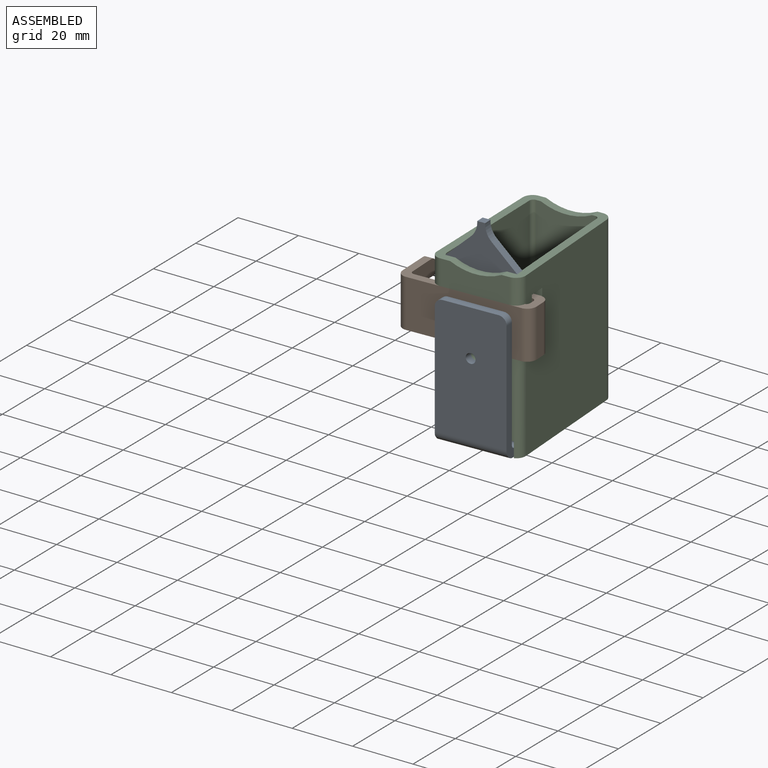
[diagram: assembled view]
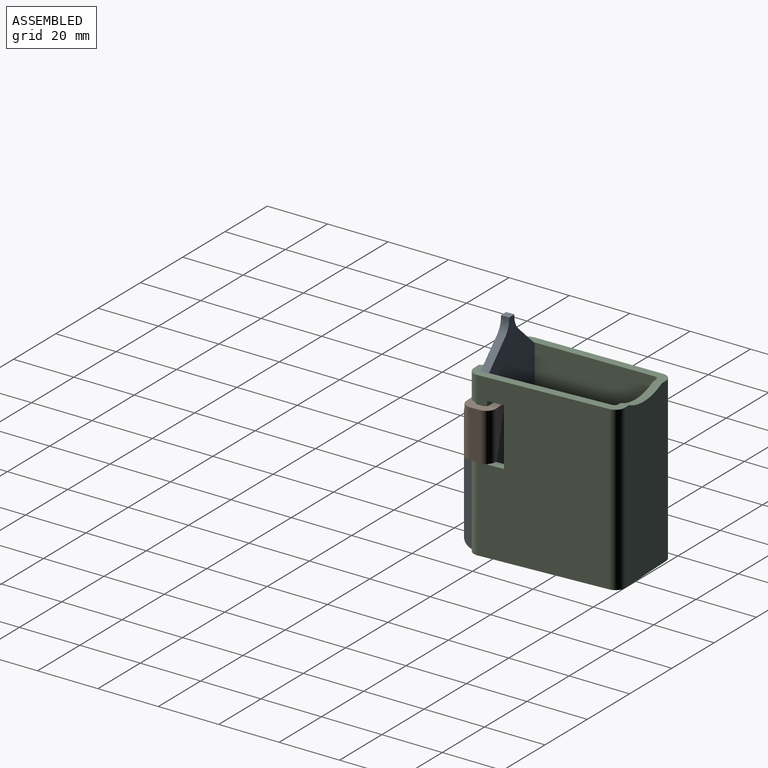
[diagram: assembled view, second angle]
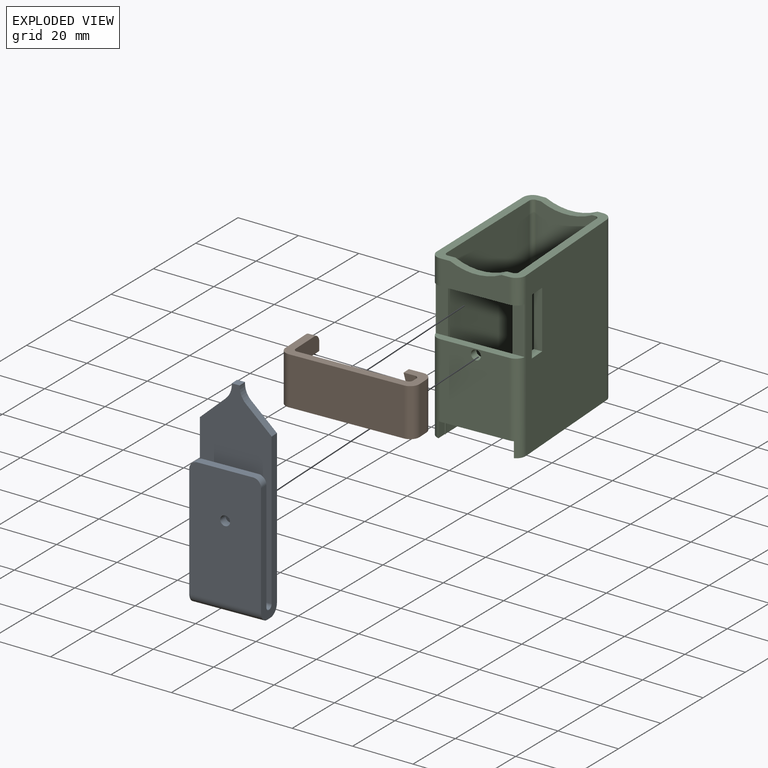
[diagram: exploded view]
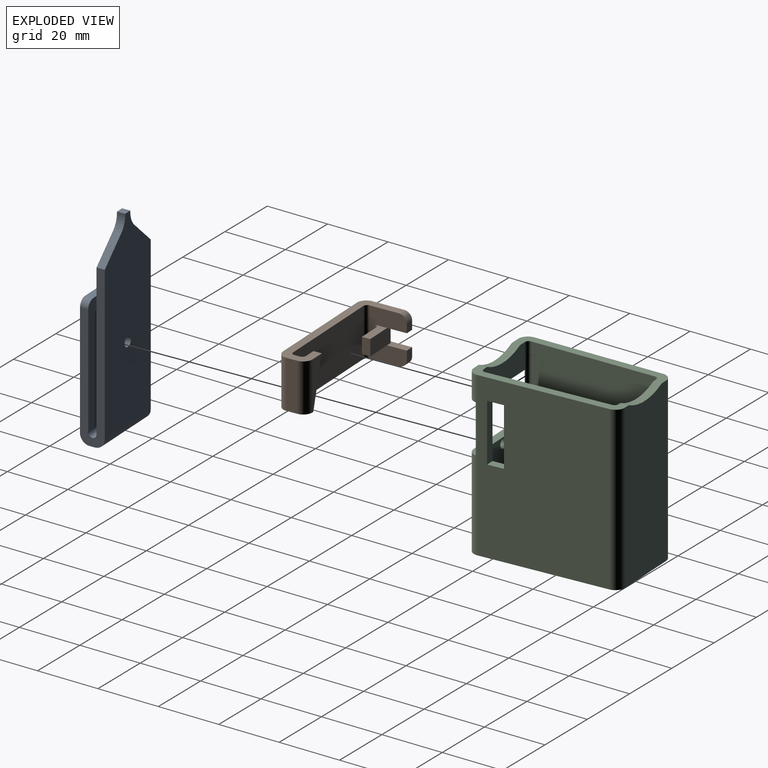
[diagram: exploded view, second angle]
ASSEMBLY  parts=3 mates=3
PART A: 24 faces, bbox 23.1x8x66.7 mm
  f0: plane 2.67x2.54mm, normal (0,0,1), area 6.8mm2, adj f6,f7,f15,f17
  f1: plane 53.98x8mm, normal (1,0,0), area 255.8mm2, adj f4,f5,f6,f7,f8,f9,f10,f11
  f2: plane 53.98x8mm, normal (-1,0,0), area 255.8mm2, adj f4,f5,f6,f7,f8,f9,f10,f11
  f3: plane 18.03x2.67mm, normal (0,0,1), area 48.1mm2, adj f4,f9,f22,f23
  f4: plane 40.01x23.11mm, normal (0,-1,0), area 914mm2, adj f1,f2,f3,f12,f14,f22,f23
  f5: plane 23.11x1.65mm, normal (0,0,-1), area 38.2mm2, adj f1,f2,f12,f13
  f6: plane 63.5x23.11mm, normal (0,1,0), area 1298.5mm2, adj f0,f1,f2,f13,f15,f16,f17,f18
  f7: plane 62.74x23.11mm, normal (0,-1,0), area 1280.9mm2, adj f0,f1,f2,f10,f15,f16,f17,f18
  f8: plane 23.11x0.13mm, normal (0,0,1), area 2.9mm2, adj f1,f2,f10,f11
  f9: plane 39.24x23.11mm, normal (0,1,0), area 896.4mm2, adj f1,f2,f3,f11,f14,f22,f23
  f10: cylinder r=1.27mm len=23.11mm, axis (1,0,0), area 46.1mm2, adj f1,f2,f7,f8
  f11: cylinder r=1.27mm len=23.11mm, axis (1,0,0), area 46.1mm2, adj f1,f2,f8,f9
  f12: cylinder r=3.17mm len=23.11mm, axis (-1,0,0), area 115.3mm2, adj f1,f2,f4,f5
  f13: cylinder r=3.17mm len=23.11mm, axis (-1,0,0), area 115.3mm2, adj f1,f2,f5,f6
  f14: cylinder r=1.59mm len=3.18mm, axis (0,-1,0), area 26.6mm2, adj f4,f9
  f15: plane 2.67x0.4mm, normal (-1,0,0), area 1.1mm2, adj f0,f6,f7,f21
  f16: plane 8.25x7.64mm, normal (-0.68,0,0.73), area 30mm2, adj f2,f6,f7,f21
  f17: plane 2.67x0.4mm, normal (1,0,0), area 1.1mm2, adj f0,f6,f7,f20
  f18: plane 8.25x7.64mm, normal (0.68,0,0.73), area 30mm2, adj f1,f6,f7,f20
  f19: cylinder r=1.59mm len=3.18mm, axis (0,-1,0), area 26.6mm2, adj f6,f7
  f20: cylinder r=6.35mm len=4.66mm, axis (0,1,0), area 14mm2, adj f6,f7,f17,f18
  f21: cylinder r=6.35mm len=4.66mm, axis (0,1,0), area 14mm2, adj f6,f7,f15,f16
  f22: cylinder r=2.54mm len=2.67mm, axis (0,-1,0), area 10.6mm2, adj f2,f3,f4,f9
  f23: cylinder r=2.54mm len=2.67mm, axis (0,1,0), area 10.6mm2, adj f1,f3,f4,f9
PART B: 30 faces, bbox 43.2x15.9x15.9 mm
  f0: plane 7.24x5.21mm, normal (0,-1,0), area 37.7mm2, adj f1,f18,f19,f24
  f1: plane 5.21x2.67mm, normal (1,0,0), area 13.9mm2, adj f0,f2,f18,f19
  f2: plane 9.91x5.21mm, normal (0,1,0), area 51.6mm2, adj f1,f16,f17,f18,f19,f20
  f3: plane 43.18x13.34mm, normal (0,0,-1), area 158.8mm2, adj f6,f8,f9,f10,f12,f13,f14,f15
  f4: plane 43.18x13.34mm, normal (0,0,1), area 170.2mm2, adj f6,f7,f8,f9,f10,f12,f13,f14
  f5: plane 2.79x2.67mm, normal (0,1,0), area 7.5mm2, adj f10,f12,f17,f29
  f6: plane 15.88x4.57mm, normal (0,1,0), area 38.8mm2, adj f3,f4,f15,f27
  f7: plane 13.75x3.68mm, normal (0,-1,0), area 25.3mm2, adj f4,f15,f21
  f8: plane 15.88x1.65mm, normal (-1,0,0), area 26.2mm2, adj f3,f4,f21,f22
  f9: plane 35.31x15.88mm, normal (0,1,0), area 560.5mm2, adj f3,f4,f22,f23
  f10: plane 15.88x11.94mm, normal (1,0,0), area 133.2mm2, adj f3,f4,f5,f11,f16,f17,f18,f19
  f11: plane 2.79x2.67mm, normal (0,1,0), area 7.5mm2, adj f10,f12,f16,f28
  f12: plane 15.88x12.83mm, normal (-1,0,0), area 161.2mm2, adj f3,f4,f5,f11,f16,f17,f20,f25
  f13: plane 37.08x15.88mm, normal (0,-1,0), area 588.7mm2, adj f3,f4,f25,f26
  f14: plane 15.88x3.43mm, normal (1,0,0), area 54.4mm2, adj f3,f4,f26,f27
  f15: plane 15.88x4.25mm, normal (-0.97,0,-0.26), area 43.9mm2, adj f3,f4,f6,f7,f21
  f16: plane 7.62x2.67mm, normal (0,0,-1), area 17.3mm2, adj f2,f10,f11,f12,f20
  f17: plane 7.62x2.67mm, normal (0,0,1), area 17.3mm2, adj f2,f5,f10,f12,f20
  f18: plane 8.51x3.94mm, normal (0,0,1), area 23mm2, adj f0,f1,f2,f10,f24
  f19: plane 8.51x3.94mm, normal (0,0,-1), area 23mm2, adj f0,f1,f2,f10,f24
  f20: cylinder r=1.27mm len=5.21mm, axis (0,0,-1), area 10.4mm2, adj f2,f12,f16,f17
  f21: cylinder r=1.27mm len=15.88mm, axis (0,0,-1), area 31.1mm2, adj f3,f4,f7,f8,f15
  f22: cylinder r=1.27mm len=15.88mm, axis (0,0,-1), area 31.7mm2, adj f3,f4,f8,f9
  f23: cylinder r=1.27mm len=15.88mm, axis (0,0,-1), area 31.7mm2, adj f3,f4,f9,f10
  f24: cylinder r=1.27mm len=5.21mm, axis (0,0,-1), area 10.4mm2, adj f0,f10,f18,f19
  f25: cylinder r=3.05mm len=15.88mm, axis (0,0,1), area 76mm2, adj f3,f4,f12,f13
  f26: cylinder r=3.05mm len=15.88mm, axis (0,0,1), area 76mm2, adj f3,f4,f13,f14
  f27: cylinder r=3.05mm len=15.88mm, axis (0,0,1), area 76mm2, adj f3,f4,f6,f14
  f28: cylinder r=2.54mm len=2.67mm, axis (-1,0,0), area 10.6mm2, adj f4,f10,f11,f12
  f29: cylinder r=2.54mm len=2.67mm, axis (1,0,0), area 10.6mm2, adj f3,f5,f10,f12
PART C: 37 faces, bbox 28.7x48.3x54 mm
  f0: plane 24.71x20.79mm, normal (0,1,0), area 505.9mm2, adj f8,f9,f23,f28,f35
  f1: plane 22.35x8.31mm, normal (0,-1,0), area 164.3mm2, adj f2,f3,f11,f12,f22,f36
  f2: cylinder r=3.17mm len=53.98mm, axis (0,0,-1), area 198.8mm2, adj f1,f7,f11,f15,f16,f23,f26,f33
  f3: cylinder r=3.17mm len=53.98mm, axis (0,0,-1), area 195.4mm2, adj f1,f5,f7,f12,f15,f23,f27,f34
  f4: plane 53.98x40.39mm, normal (1,-0.02,0), area 2078.7mm2, adj f7,f9,f12,f19,f29,f30,f31,f32
  f5: plane 53.98x41.91mm, normal (-1,0.02,0), area 2161mm2, adj f3,f7,f12,f17,f29,f30,f31,f32
  f6: plane 20.79x8.31mm, normal (0,1,0), area 151.4mm2, adj f8,f9,f11,f12,f22,f36
  f7: plane 48.21x28.7mm, normal (0,0,1), area 304.9mm2, adj f2,f3,f4,f5,f8,f9,f10,f13
  f8: cylinder r=1.27mm len=53.98mm, axis (0,0,1), area 103.1mm2, adj f0,f6,f7,f11,f14,f23,f24,f33
  f9: cylinder r=1.27mm len=53.98mm, axis (0,0,1), area 103.1mm2, adj f0,f4,f6,f7,f12,f23,f25,f34
  f10: plane 53.98x20.6mm, normal (0,1,0), area 1090.3mm2, adj f7,f11,f12,f17,f18,f21
  f11: plane 48.26x6.36mm, normal (0,0,-1), area 142.5mm2, adj f1,f2,f6,f8,f10,f13,f14,f16
  f12: plane 48.26x5.73mm, normal (0,0,-1), area 139.1mm2, adj f1,f3,f4,f5,f6,f9,f10,f13
  f13: plane 53.98x19.1mm, normal (0,-1,0), area 1009.7mm2, adj f7,f11,f12,f19,f20,f21
  f14: plane 53.98x40.39mm, normal (-1,-0.02,0), area 2180.3mm2, adj f7,f8,f11,f20
  f15: plane 24.71x22.35mm, normal (0,-1,0), area 544.3mm2, adj f2,f3,f23,f28,f35
  f16: plane 53.98x41.91mm, normal (1,0.02,0), area 2262.6mm2, adj f2,f7,f11,f18
  f17: cylinder r=3.17mm len=53.98mm, axis (0,0,-1), area 265.6mm2, adj f5,f7,f10,f12
  f18: cylinder r=3.17mm len=53.98mm, axis (0,0,-1), area 265.6mm2, adj f7,f10,f11,f16
  f19: cylinder r=1.27mm len=53.98mm, axis (0,0,1), area 106.2mm2, adj f4,f7,f12,f13
  f20: cylinder r=1.27mm len=53.98mm, axis (0,0,1), area 106.2mm2, adj f7,f11,f13,f14
  f21: cylinder r=19.05mm len=16.61mm, axis (0,1,0), area 45.8mm2, adj f10,f11,f12,f13
  f22: cylinder r=19.05mm len=16.61mm, axis (0,1,0), area 45.8mm2, adj f1,f6,f11,f12
  f23: plane 24.13x3.18mm, normal (0,0,1), area 65.2mm2, adj f0,f2,f3,f8,f9,f15,f24,f25
  f24: plane 5.08x0.34mm, normal (0,-1,0), area 1.7mm2, adj f7,f8,f23,f26
  f25: plane 5.08x0.97mm, normal (0,-1,0), area 4.9mm2, adj f7,f9,f23,f27
  f26: plane 5.08x3.12mm, normal (-1,0,0), area 15.9mm2, adj f2,f7,f23,f24
  f27: plane 5.08x2.94mm, normal (1,0,0), area 14.9mm2, adj f3,f7,f23,f25
  f28: cylinder r=1.59mm len=3.18mm, axis (0,-1,0), area 26.6mm2, adj f0,f15
  f29: plane 19.05x2.67mm, normal (0,-1,0), area 50.8mm2, adj f4,f5,f30,f32
  f30: plane 5.33x2.78mm, normal (0,0,-1), area 14.2mm2, adj f4,f5,f29,f31
  f31: plane 19.05x2.67mm, normal (0,1,0), area 50.8mm2, adj f4,f5,f30,f32
  f32: plane 5.33x2.78mm, normal (0,0,1), area 14.2mm2, adj f4,f5,f29,f31
  f33: plane 15.88x3.91mm, normal (0,-1,0), area 62.1mm2, adj f2,f8,f35,f36
  f34: plane 15.88x3.91mm, normal (0,-1,0), area 62.1mm2, adj f3,f9,f35,f36
  f35: plane 28.61x2.67mm, normal (0,0,-1), area 72.2mm2, adj f0,f2,f3,f15,f33,f34
  f36: plane 28.61x2.67mm, normal (0,0,1), area 72.2mm2, adj f1,f2,f3,f6,f33,f34
PLACE A rot(axis=(0,0,1),2.4deg) t=(-0.33,-149.46,62.01)mm
PLACE B rot(axis=(0,0,1),2.4deg) t=(9.25,-139.52,64.5)mm
PLACE C rot(axis=(-0.02,1,0),180deg) t=(-2.46,-98.57,72.81)mm
MATE planar C.f1 <-> B.f13  axis (0.04,-1,0) through (-0.8,-146.81,68.21)mm
MATE planar B.f3 <-> C.f35  axis (0,0,-1) through (-4.42,-146.96,48.63)mm
MATE fastened A.f14 <-> C.f28  axis (-0.04,1,0) through (-0.44,-146.79,46.77)mm
